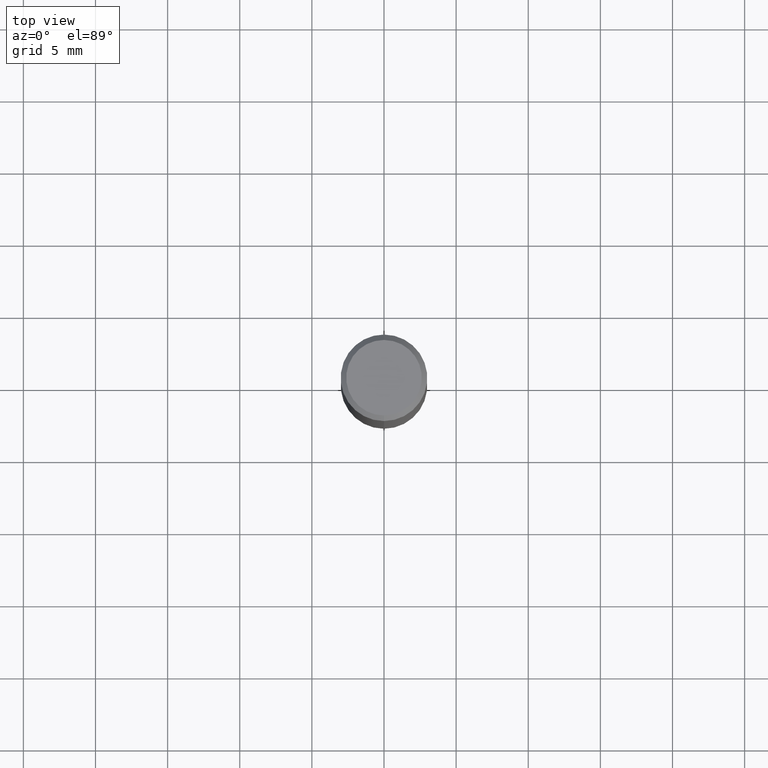
[diagram: clean part render]
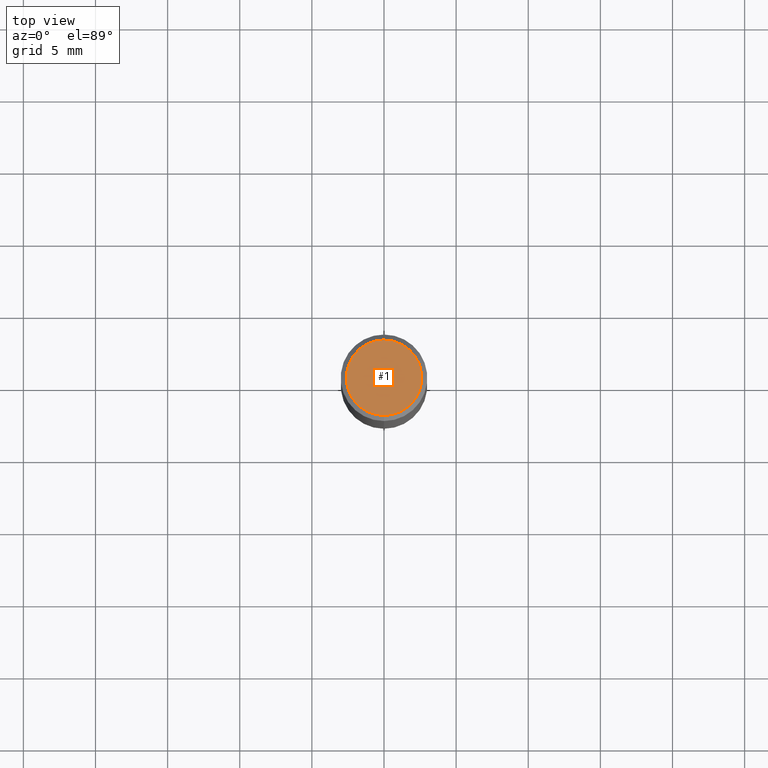
[diagram: same view with one face highlighted and labeled with its STEP entity id]
A machine part, top view. The second image highlights one B-rep face of the part: STEP entity #1.
In plain terms, the highlighted planar face has unit normal (0, -0, -1).
Its self-contained STEP definition (entity closure, byte-faithful):
#1 = ADVANCED_FACE ( 'NONE', ( #321 ), #201, .F. ) ;
#11 = AXIS2_PLACEMENT_3D ( 'NONE', #284, #84, #128 ) ;
#26 = CIRCLE ( 'NONE', #11, 0.1030999999999999833 ) ;
#53 = EDGE_LOOP ( 'NONE', ( #353, #116 ) ) ;
#61 = CARTESIAN_POINT ( 'NONE',  ( -7.587710785535310407E-16, -0.1030999999999999833, 2.171883166771725854E-16 ) ) ;
#65 = DIRECTION ( 'NONE',  ( -2.445312692479667883E-29, 3.491704902554816982E-15, 1.000000000000000000 ) ) ;
#74 = CARTESIAN_POINT ( 'NONE',  ( 7.199434520694539070E-16, 0.1030999999999999833, -4.313980048415160526E-16 ) ) ;
#84 = DIRECTION ( 'NONE',  ( -2.445312692479667883E-29, 3.491704902554816982E-15, 1.000000000000000000 ) ) ;
#116 = ORIENTED_EDGE ( 'NONE', *, *, #347, .T. ) ;
#122 = DIRECTION ( 'NONE',  ( 2.445312692479667602E-29, -3.491704902554816982E-15, -1.000000000000000000 ) ) ;
#128 = DIRECTION ( 'NONE',  ( -6.982962677686265922E-15, -1.000000000000000000, 3.491704902554816587E-15 ) ) ;
#164 = DIRECTION ( 'NONE',  ( 6.982962677686265922E-15, 1.000000000000000000, -3.491704902554816982E-15 ) ) ;
#201 = PLANE ( 'NONE',  #205 ) ;
#205 = AXIS2_PLACEMENT_3D ( 'NONE', #74, #122, #164 ) ;
#209 = VERTEX_POINT ( 'NONE', #210 ) ;
#210 = CARTESIAN_POINT ( 'NONE',  ( 7.723156721521010848E-16, 0.1030999999999999833, -5.028012342296305664E-16 ) ) ;
#273 = EDGE_CURVE ( 'NONE', #209, #465, #26, .T. ) ;
#284 = CARTESIAN_POINT ( 'NONE',  ( 3.492064462135871408E-45, -4.986380122254510664E-31, -1.428064587762289781E-16 ) ) ;
#306 = CARTESIAN_POINT ( 'NONE',  ( 3.492064462135871408E-45, -4.986380122254510664E-31, -1.428064587762289781E-16 ) ) ;
#321 = FACE_OUTER_BOUND ( 'NONE', #53, .T. ) ;
#347 = EDGE_CURVE ( 'NONE', #465, #209, #352, .T. ) ;
#352 = CIRCLE ( 'NONE', #474, 0.1030999999999999833 ) ;
#353 = ORIENTED_EDGE ( 'NONE', *, *, #273, .T. ) ;
#465 = VERTEX_POINT ( 'NONE', #61 ) ;
#474 = AXIS2_PLACEMENT_3D ( 'NONE', #306, #65, #501 ) ;
#501 = DIRECTION ( 'NONE',  ( -6.982962677686265922E-15, -1.000000000000000000, 3.491704902554816587E-15 ) ) ;